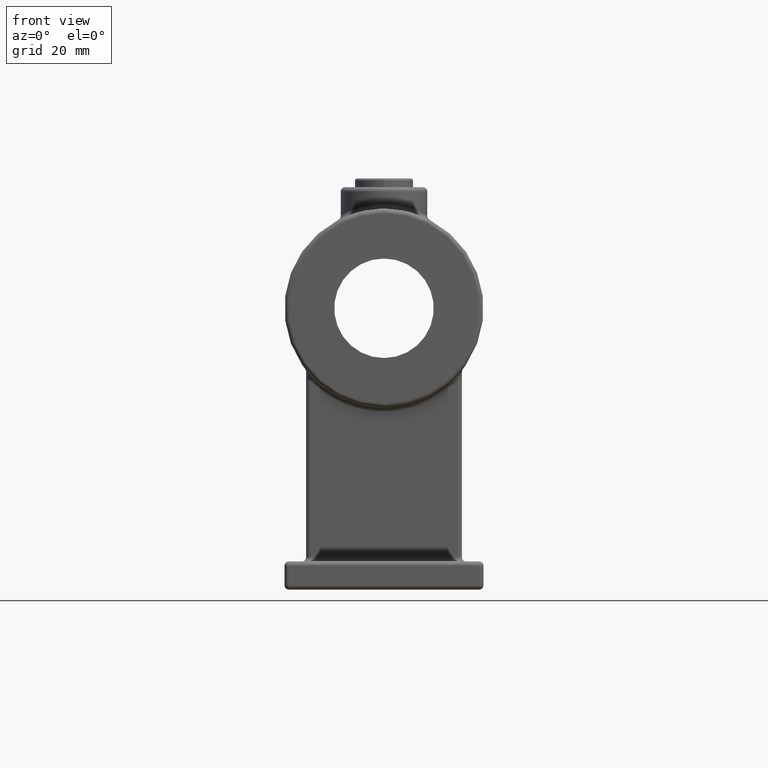
[diagram: clean part render]
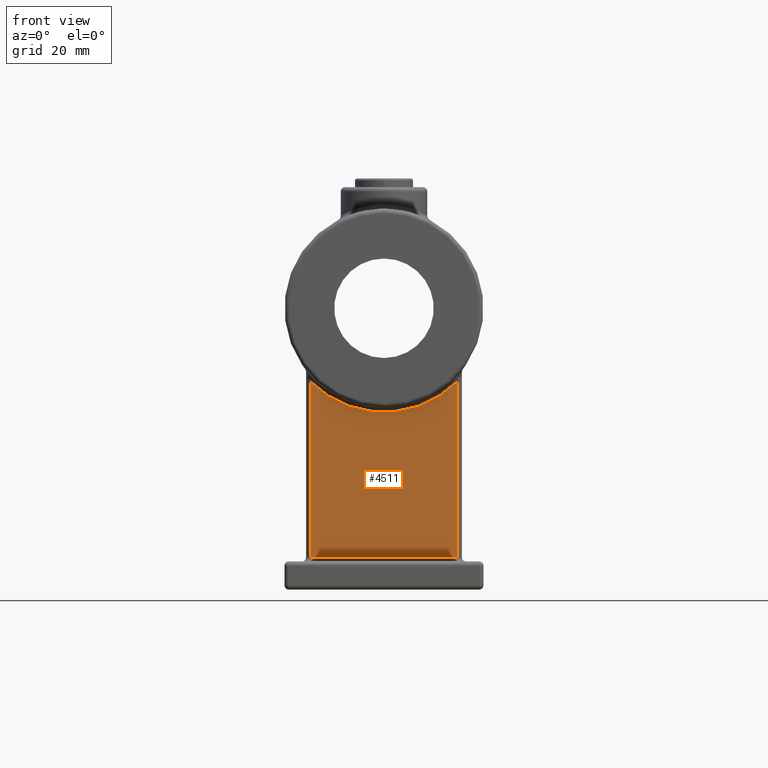
[diagram: same view with one face highlighted and labeled with its STEP entity id]
A machine part, front view. The second image highlights one B-rep face of the part: STEP entity #4511.
In plain terms, the highlighted planar face has unit normal (0, 1, 0).
Its self-contained STEP definition (entity closure, byte-faithful):
#929 = VERTEX_POINT ( 'NONE', #8197 ) ;
#1664 = AXIS2_PLACEMENT_3D ( 'NONE', #7184, #14579, #7243 ) ;
#2933 = VERTEX_POINT ( 'NONE', #10320 ) ;
#3157 = ORIENTED_EDGE ( 'NONE', *, *, #5991, .T. ) ;
#3260 = VERTEX_POINT ( 'NONE', #5043 ) ;
#3268 = DIRECTION ( 'NONE',  ( 9.637352644315594010E-17, 1.000000000000000000, -0.000000000000000000 ) ) ;
#3559 = ORIENTED_EDGE ( 'NONE', *, *, #9632, .T. ) ;
#4511 = ADVANCED_FACE ( 'NONE', ( #13437 ), #9659, .F. ) ;
#5043 = CARTESIAN_POINT ( 'NONE',  ( -16.99999999999999645, -16.99999999999999645, 7.499999999993178790 ) ) ;
#5273 = VECTOR ( 'NONE', #10616, 1000.000000000000000 ) ;
#5353 = DIRECTION ( 'NONE',  ( 1.000000000000000000, -9.637352644315594010E-17, 0.000000000000000000 ) ) ;
#5569 = LINE ( 'NONE', #9076, #5941 ) ;
#5737 = CARTESIAN_POINT ( 'NONE',  ( 9.637352644315619895E-17, -17.00000000000000000, 65.00000000000000000 ) ) ;
#5803 = DIRECTION ( 'NONE',  ( -1.000000000000000000, 1.445602896647339163E-16, 0.000000000000000000 ) ) ;
#5941 = VECTOR ( 'NONE', #5353, 1000.000000000000000 ) ;
#5991 = EDGE_CURVE ( 'NONE', #929, #15359, #14172, .T. ) ;
#7184 = CARTESIAN_POINT ( 'NONE',  ( 18.00000000000000000, -17.00000000000000000, 500000.0000000000582 ) ) ;
#7243 = DIRECTION ( 'NONE',  ( -1.000000000000000000, 9.637352644315594010E-17, 0.000000000000000000 ) ) ;
#8197 = CARTESIAN_POINT ( 'NONE',  ( 17.00000000000000000, -17.00000000000000000, 48.05892565390258397 ) ) ;
#8298 = VECTOR ( 'NONE', #11091, 1000.000000000000000 ) ;
#8531 = LINE ( 'NONE', #13073, #5273 ) ;
#9076 = CARTESIAN_POINT ( 'NONE',  ( 18.00000000000000000, -17.00000000000000000, 7.499999999993178790 ) ) ;
#9632 = EDGE_CURVE ( 'NONE', #15359, #3260, #8531, .T. ) ;
#9659 = PLANE ( 'NONE',  #1664 ) ;
#10320 = CARTESIAN_POINT ( 'NONE',  ( 16.99999999999999645, -17.00000000000000000, 7.499999999993178790 ) ) ;
#10616 = DIRECTION ( 'NONE',  ( 0.000000000000000000, 0.000000000000000000, -1.000000000000000000 ) ) ;
#11091 = DIRECTION ( 'NONE',  ( -0.000000000000000000, -0.000000000000000000, 1.000000000000000000 ) ) ;
#12083 = CARTESIAN_POINT ( 'NONE',  ( -17.00000000000294875, -17.00000000000000000, 48.05892565390553983 ) ) ;
#12303 = CARTESIAN_POINT ( 'NONE',  ( 16.99999999999999645, -17.00000000000000000, 500000.0000000000582 ) ) ;
#13073 = CARTESIAN_POINT ( 'NONE',  ( -16.99999999999999645, -16.99999999999999645, 500000.0000000000582 ) ) ;
#13350 = EDGE_CURVE ( 'NONE', #2933, #929, #15820, .T. ) ;
#13437 = FACE_OUTER_BOUND ( 'NONE', #14751, .T. ) ;
#13921 = AXIS2_PLACEMENT_3D ( 'NONE', #5737, #3268, #5803 ) ;
#14033 = ORIENTED_EDGE ( 'NONE', *, *, #13350, .T. ) ;
#14172 = CIRCLE ( 'NONE', #13921, 24.00000000000000000 ) ;
#14426 = ORIENTED_EDGE ( 'NONE', *, *, #15520, .T. ) ;
#14579 = DIRECTION ( 'NONE',  ( 9.637352644315594010E-17, 1.000000000000000000, -0.000000000000000000 ) ) ;
#14751 = EDGE_LOOP ( 'NONE', ( #14426, #14033, #3157, #3559 ) ) ;
#15359 = VERTEX_POINT ( 'NONE', #12083 ) ;
#15520 = EDGE_CURVE ( 'NONE', #3260, #2933, #5569, .T. ) ;
#15820 = LINE ( 'NONE', #12303, #8298 ) ;